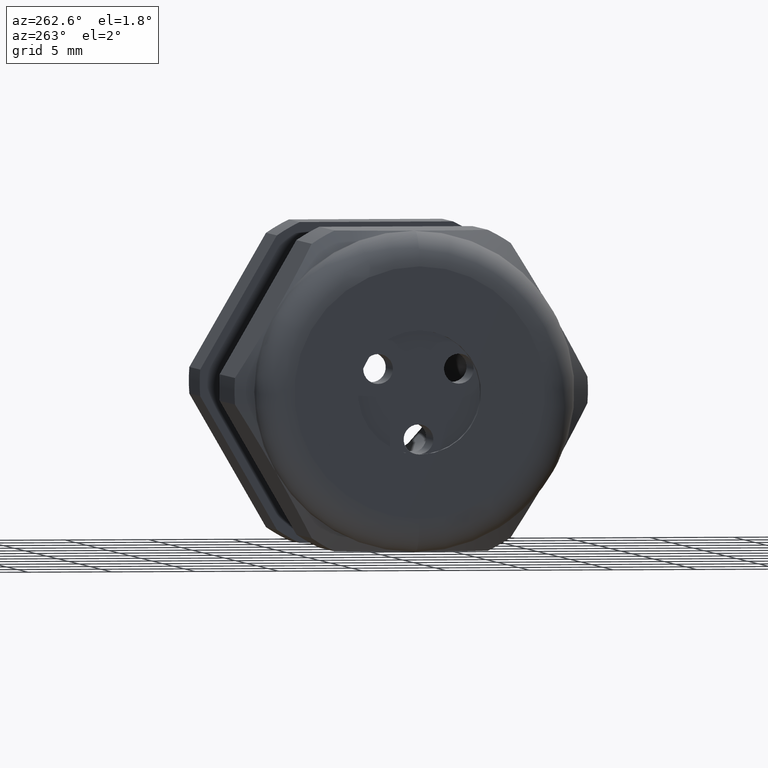
[diagram: clean part render]
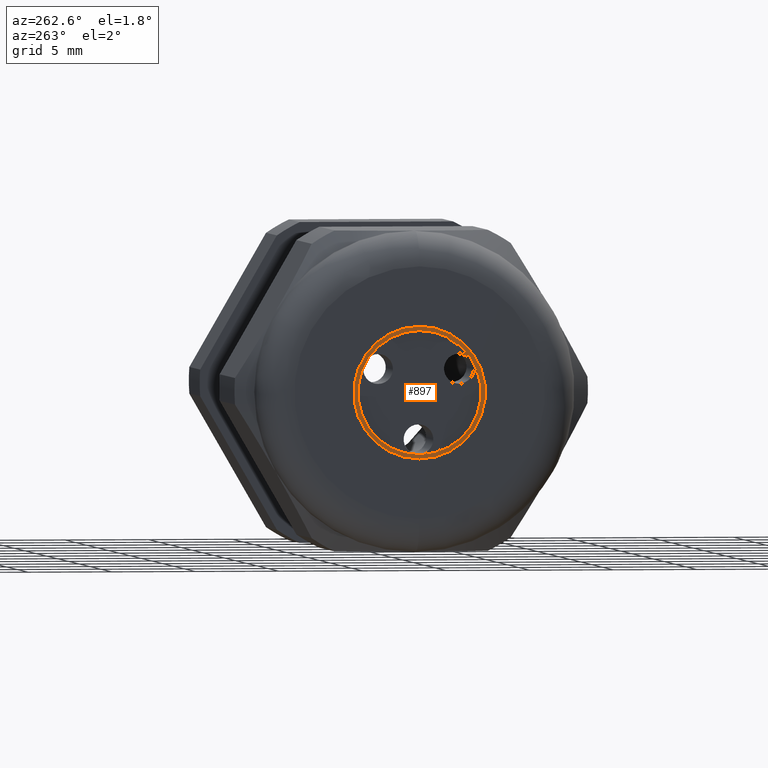
[diagram: same view with one face highlighted and labeled with its STEP entity id]
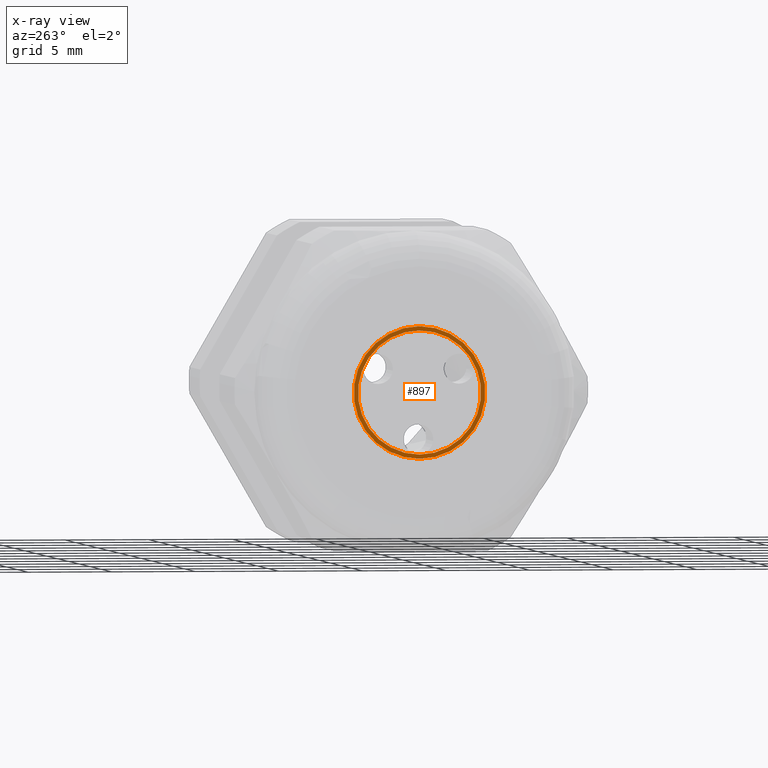
[diagram: x-ray of the same camera — body ghosted, the highlighted face saturated]
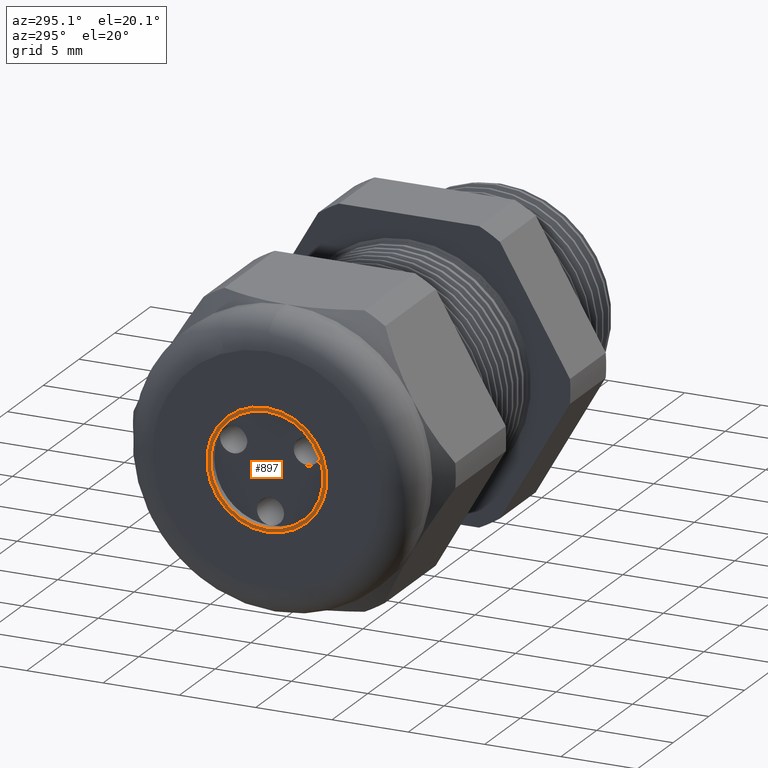
[diagram: same view with one face highlighted and labeled with its STEP entity id]
A machine part, auxiliary view. The second image highlights one B-rep face of the part: STEP entity #897.
The next image is the same camera in x-ray: the body ghosted, the highlighted face saturated — about 0% of this face is hidden behind the body in this view.
A second angle (auxiliary view) of the same face is appended — the face is thin or edge-on in the first view.
In plain terms, the highlighted planar face has unit normal (-1, 0, 0).
Its self-contained STEP definition (entity closure, byte-faithful):
#872 = VERTEX_POINT ( 'NONE', #2559 ) ;
#897 = ADVANCED_FACE ( 'NONE', ( #2646, #2645 ), #2644, .T. ) ;
#898 = ORIENTED_EDGE ( 'NONE', *, *, #899, .F. ) ;
#899 = EDGE_CURVE ( 'NONE', #926, #872, #2639, .T. ) ;
#900 = EDGE_LOOP ( 'NONE', ( #937, #938 ) ) ;
#903 = EDGE_CURVE ( 'NONE', #942, #951, #2627, .T. ) ;
#925 = EDGE_CURVE ( 'NONE', #872, #926, #2708, .T. ) ;
#926 = VERTEX_POINT ( 'NONE', #2703 ) ;
#936 = ORIENTED_EDGE ( 'NONE', *, *, #925, .F. ) ;
#937 = ORIENTED_EDGE ( 'NONE', *, *, #903, .T. ) ;
#938 = ORIENTED_EDGE ( 'NONE', *, *, #944, .T. ) ;
#942 = VERTEX_POINT ( 'NONE', #2745 ) ;
#944 = EDGE_CURVE ( 'NONE', #951, #942, #2744, .T. ) ;
#951 = VERTEX_POINT ( 'NONE', #2719 ) ;
#959 = EDGE_LOOP ( 'NONE', ( #898, #936 ) ) ;
#2559 = CARTESIAN_POINT ( 'NONE',  ( -1.289999999999999800, 1.775737858763661900E-017, -0.1449999999999999900 ) ) ;
#2624 = DIRECTION ( 'NONE',  ( 0.0000000000000000000, 0.0000000000000000000, 1.000000000000000000 ) ) ;
#2625 = DIRECTION ( 'NONE',  ( -1.000000000000000000, 0.0000000000000000000, 0.0000000000000000000 ) ) ;
#2626 = AXIS2_PLACEMENT_3D ( 'NONE', #2632, #2625, #2624 ) ;
#2627 = CIRCLE ( 'NONE', #2626, 0.1550000000000000000 ) ;
#2632 = CARTESIAN_POINT ( 'NONE',  ( -1.289999999999999800, 0.0000000000000000000, 0.0000000000000000000 ) ) ;
#2635 = DIRECTION ( 'NONE',  ( 0.0000000000000000000, 0.0000000000000000000, 1.000000000000000000 ) ) ;
#2636 = DIRECTION ( 'NONE',  ( -1.000000000000000000, 0.0000000000000000000, 0.0000000000000000000 ) ) ;
#2637 = CARTESIAN_POINT ( 'NONE',  ( -1.289999999999999800, 0.0000000000000000000, 0.0000000000000000000 ) ) ;
#2638 = AXIS2_PLACEMENT_3D ( 'NONE', #2637, #2636, #2635 ) ;
#2639 = CIRCLE ( 'NONE', #2638, 0.1449999999999999900 ) ;
#2640 = DIRECTION ( 'NONE',  ( 0.0000000000000000000, 0.0000000000000000000, 1.000000000000000000 ) ) ;
#2641 = DIRECTION ( 'NONE',  ( -1.000000000000000000, 0.0000000000000000000, 0.0000000000000000000 ) ) ;
#2642 = CARTESIAN_POINT ( 'NONE',  ( -1.289999999999999800, 0.0000000000000000000, 0.0000000000000000000 ) ) ;
#2643 = AXIS2_PLACEMENT_3D ( 'NONE', #2642, #2641, #2640 ) ;
#2644 = PLANE ( 'NONE',  #2643 ) ;
#2645 = FACE_OUTER_BOUND ( 'NONE', #900, .T. ) ;
#2646 = FACE_BOUND ( 'NONE', #959, .T. ) ;
#2703 = CARTESIAN_POINT ( 'NONE',  ( -1.289999999999999800, 0.0000000000000000000, 0.1449999999999999900 ) ) ;
#2704 = DIRECTION ( 'NONE',  ( 0.0000000000000000000, 0.0000000000000000000, 1.000000000000000000 ) ) ;
#2705 = DIRECTION ( 'NONE',  ( -1.000000000000000000, 0.0000000000000000000, 0.0000000000000000000 ) ) ;
#2706 = CARTESIAN_POINT ( 'NONE',  ( -1.289999999999999800, 0.0000000000000000000, 0.0000000000000000000 ) ) ;
#2707 = AXIS2_PLACEMENT_3D ( 'NONE', #2706, #2705, #2704 ) ;
#2708 = CIRCLE ( 'NONE', #2707, 0.1449999999999999900 ) ;
#2719 = CARTESIAN_POINT ( 'NONE',  ( -1.289999999999999800, 1.898202538678397000E-017, -0.1550000000000000000 ) ) ;
#2740 = DIRECTION ( 'NONE',  ( 0.0000000000000000000, 0.0000000000000000000, 1.000000000000000000 ) ) ;
#2741 = DIRECTION ( 'NONE',  ( -1.000000000000000000, 0.0000000000000000000, 0.0000000000000000000 ) ) ;
#2742 = CARTESIAN_POINT ( 'NONE',  ( -1.289999999999999800, 0.0000000000000000000, 0.0000000000000000000 ) ) ;
#2743 = AXIS2_PLACEMENT_3D ( 'NONE', #2742, #2741, #2740 ) ;
#2744 = CIRCLE ( 'NONE', #2743, 0.1550000000000000000 ) ;
#2745 = CARTESIAN_POINT ( 'NONE',  ( -1.289999999999999800, 0.0000000000000000000, 0.1550000000000000000 ) ) ;